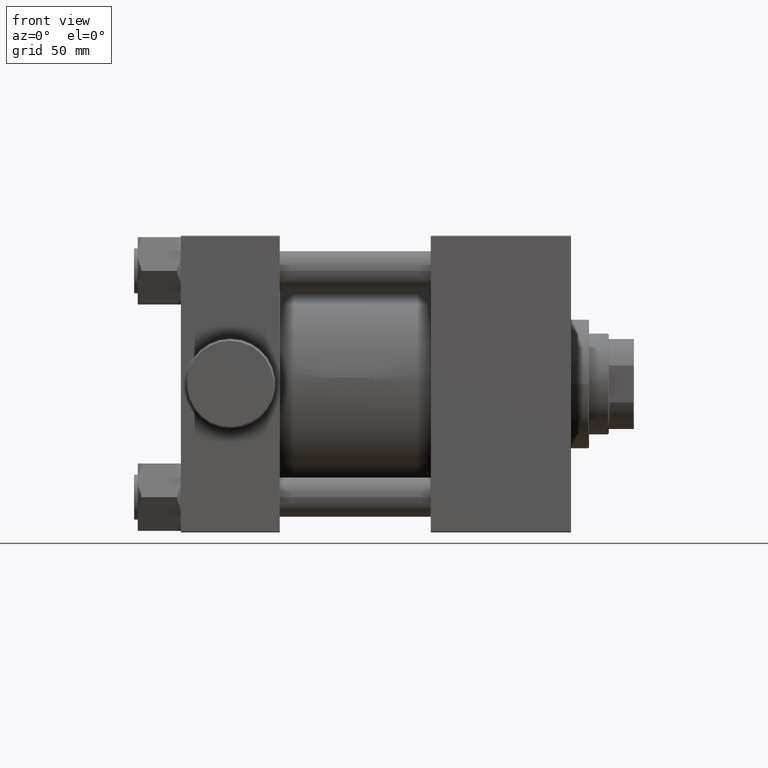
[diagram: clean part render]
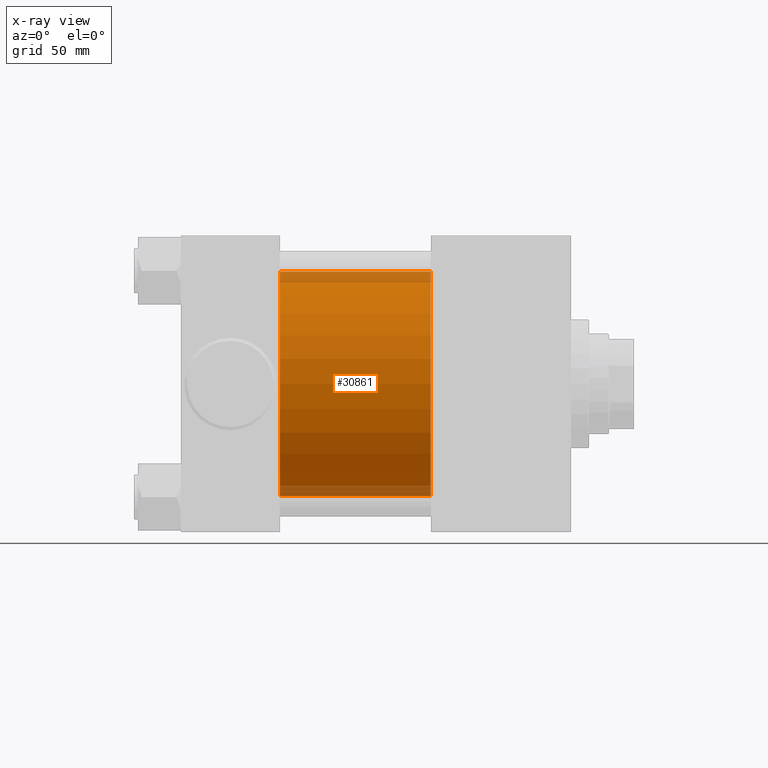
[diagram: x-ray — body ghosted, one internal face saturated and labeled with its STEP entity id]
A machine part, front view, then the same camera in x-ray: the body is ghosted and one INTERNAL B-rep face — a face not visible from any outside direction — is saturated and labeled: STEP entity #30861.
In plain terms, the highlighted cylindrical surface (partial cylindrical patch) has radius 62.5 mm, axis along (-1, -0, -0).
Its self-contained STEP definition (entity closure, byte-faithful):
#3361 = FACE_OUTER_BOUND ( 'NONE', #13582, .T. ) ;
#3599 = CIRCLE ( 'NONE', #40627, 62.50000000000000000 ) ;
#6683 = CARTESIAN_POINT ( 'NONE',  ( 139.0000000000000000, 4.184595542717342037E-15, -62.50000000000000000 ) ) ;
#6744 = EDGE_CURVE ( 'NONE', #12872, #20502, #3599, .T. ) ;
#7133 = DIRECTION ( 'NONE',  ( -1.000000000000000000, -0.000000000000000000, -0.000000000000000000 ) ) ;
#8006 = CARTESIAN_POINT ( 'NONE',  ( 55.00000000000000000, -3.469446951953614189E-15, 62.50000000000000000 ) ) ;
#9031 = VECTOR ( 'NONE', #24658, 1000.000000000000000 ) ;
#10820 = VERTEX_POINT ( 'NONE', #19588 ) ;
#11652 = DIRECTION ( 'NONE',  ( 0.000000000000000000, 0.000000000000000000, -1.000000000000000000 ) ) ;
#12086 = CIRCLE ( 'NONE', #37851, 62.50000000000000000 ) ;
#12843 = AXIS2_PLACEMENT_3D ( 'NONE', #28438, #7133, #13513 ) ;
#12872 = VERTEX_POINT ( 'NONE', #8006 ) ;
#13513 = DIRECTION ( 'NONE',  ( 0.000000000000000000, 0.000000000000000000, 1.000000000000000000 ) ) ;
#13582 = EDGE_LOOP ( 'NONE', ( #19374, #40936, #14750, #35036 ) ) ;
#14534 = EDGE_CURVE ( 'NONE', #33542, #10820, #12086, .T. ) ;
#14704 = LINE ( 'NONE', #18472, #20365 ) ;
#14750 = ORIENTED_EDGE ( 'NONE', *, *, #6744, .F. ) ;
#17311 = LINE ( 'NONE', #6683, #9031 ) ;
#18472 = CARTESIAN_POINT ( 'NONE',  ( 139.0000000000000000, -3.469446951953614189E-15, 62.50000000000000000 ) ) ;
#19374 = ORIENTED_EDGE ( 'NONE', *, *, #14534, .T. ) ;
#19588 = CARTESIAN_POINT ( 'NONE',  ( 139.0000000000000000, 4.184595542717342037E-15, -62.50000000000000000 ) ) ;
#20365 = VECTOR ( 'NONE', #25586, 1000.000000000000000 ) ;
#20502 = VERTEX_POINT ( 'NONE', #29459 ) ;
#22996 = DIRECTION ( 'NONE',  ( 1.000000000000000000, 0.000000000000000000, 0.000000000000000000 ) ) ;
#24641 = CYLINDRICAL_SURFACE ( 'NONE', #12843, 62.50000000000000000 ) ;
#24658 = DIRECTION ( 'NONE',  ( -1.000000000000000000, -0.000000000000000000, -0.000000000000000000 ) ) ;
#25586 = DIRECTION ( 'NONE',  ( -1.000000000000000000, -0.000000000000000000, -0.000000000000000000 ) ) ;
#28438 = CARTESIAN_POINT ( 'NONE',  ( 139.0000000000000000, -3.469446951953614189E-15, 0.000000000000000000 ) ) ;
#29459 = CARTESIAN_POINT ( 'NONE',  ( 55.00000000000000000, 4.184595542717342037E-15, -62.50000000000000000 ) ) ;
#29806 = EDGE_CURVE ( 'NONE', #10820, #20502, #17311, .T. ) ;
#29847 = CARTESIAN_POINT ( 'NONE',  ( 55.00000000000000000, -3.469446951953614189E-15, 0.000000000000000000 ) ) ;
#29890 = EDGE_CURVE ( 'NONE', #33542, #12872, #14704, .T. ) ;
#30538 = DIRECTION ( 'NONE',  ( 1.000000000000000000, 0.000000000000000000, 0.000000000000000000 ) ) ;
#30861 = ADVANCED_FACE ( 'NONE', ( #3361 ), #24641, .F. ) ;
#33542 = VERTEX_POINT ( 'NONE', #34333 ) ;
#33905 = CARTESIAN_POINT ( 'NONE',  ( 139.0000000000000000, -3.469446951953614189E-15, 0.000000000000000000 ) ) ;
#34333 = CARTESIAN_POINT ( 'NONE',  ( 139.0000000000000000, -3.469446951953614189E-15, 62.50000000000000000 ) ) ;
#35036 = ORIENTED_EDGE ( 'NONE', *, *, #29890, .F. ) ;
#37851 = AXIS2_PLACEMENT_3D ( 'NONE', #33905, #22996, #11652 ) ;
#40627 = AXIS2_PLACEMENT_3D ( 'NONE', #29847, #30538, #41700 ) ;
#40936 = ORIENTED_EDGE ( 'NONE', *, *, #29806, .T. ) ;
#41700 = DIRECTION ( 'NONE',  ( 0.000000000000000000, 0.000000000000000000, -1.000000000000000000 ) ) ;